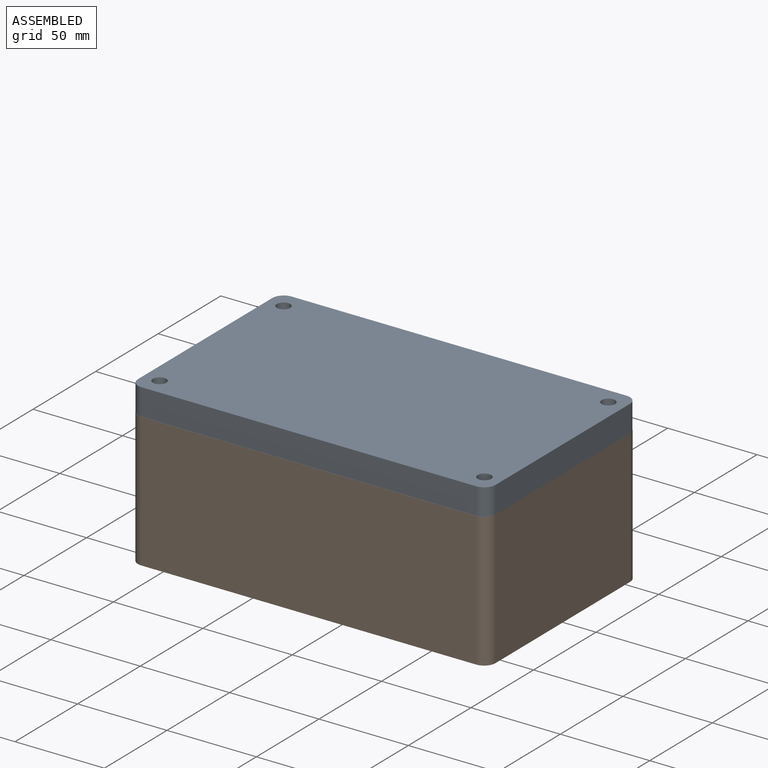
[diagram: assembled view]
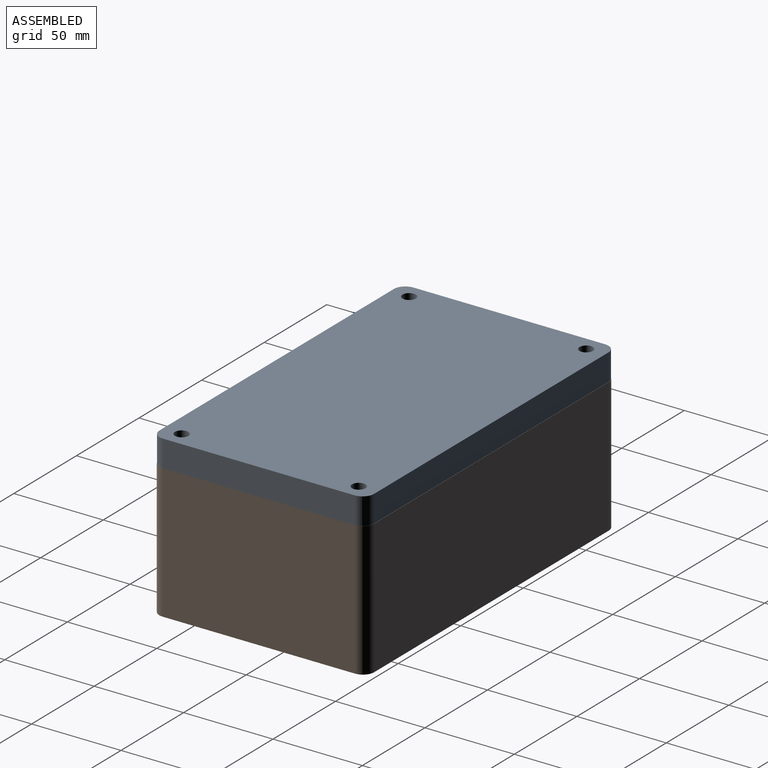
[diagram: assembled view, second angle]
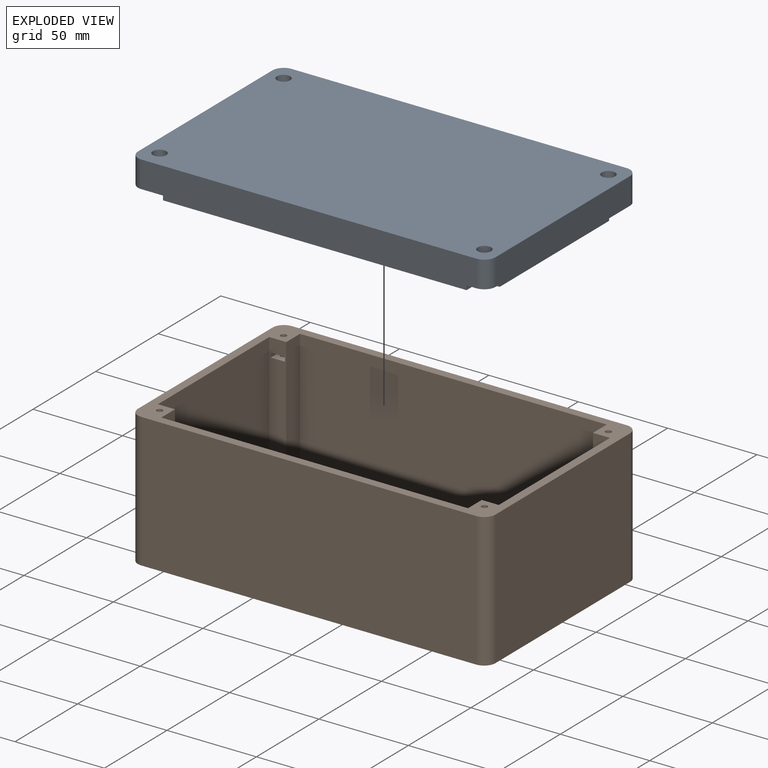
[diagram: exploded view]
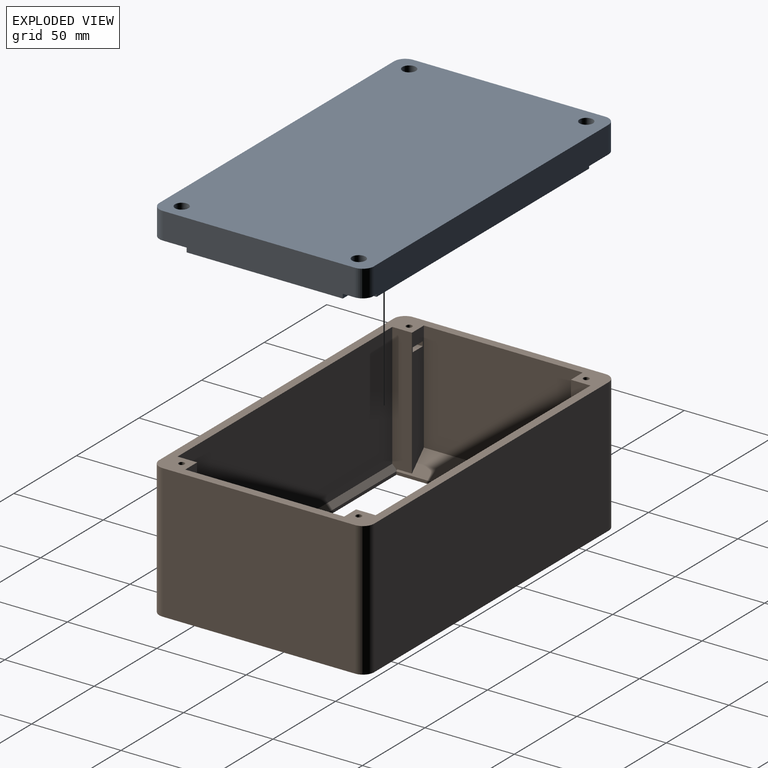
[diagram: exploded view, second angle]
ASSEMBLY  parts=2 mates=2
PART A: 35 faces, bbox 120x200x20.1 mm
  f0: plane 200.03x120mm, normal (0,0,-1), area 3307.9mm2, adj f2,f3,f4,f5,f6,f7,f8,f9
  f1: plane 200.03x120mm, normal (0,0,1), area 23791.6mm2, adj f2,f3,f4,f5,f19,f21,f23,f25
  f2: plane 187.33x14.99mm, normal (-1,0,0), area 2807.3mm2, adj f0,f1,f31,f34
  f3: plane 107.3x14.99mm, normal (0,-1,0), area 1608.1mm2, adj f0,f1,f31,f32
  f4: plane 187.33x14.99mm, normal (1,0,0), area 2807.3mm2, adj f0,f1,f32,f33
  f5: plane 107.3x14.99mm, normal (0,1,0), area 1608.1mm2, adj f0,f1,f33,f34
  f6: plane 169.8x5.08mm, normal (-1,0,0), area 862.6mm2, adj f0,f7,f17,f18
  f7: plane 11.62x5.08mm, normal (0,1,0), area 59mm2, adj f0,f6,f8,f18
  f8: plane 10.41x5.08mm, normal (-1,0,0), area 52.9mm2, adj f0,f7,f9,f18
  f9: plane 87.38x5.08mm, normal (0,1,0), area 443.9mm2, adj f0,f8,f10,f18
  f10: plane 10.41x5.08mm, normal (1,0,0), area 52.9mm2, adj f0,f9,f11,f18
  f11: plane 11.62x5.08mm, normal (0,1,0), area 59mm2, adj f0,f10,f12,f18
  f12: plane 169.8x5.08mm, normal (1,0,0), area 862.6mm2, adj f0,f11,f13,f18
  f13: plane 11.62x5.08mm, normal (0,-1,0), area 59mm2, adj f0,f12,f14,f18
  f14: plane 10.41x5.08mm, normal (1,0,0), area 52.9mm2, adj f0,f13,f15,f18
  f15: plane 87.38x5.08mm, normal (0,-1,0), area 443.9mm2, adj f0,f14,f16,f18
  f16: plane 10.41x5.08mm, normal (-1,0,0), area 52.9mm2, adj f0,f15,f17,f18
  f17: plane 11.62x5.08mm, normal (0,-1,0), area 59mm2, adj f0,f6,f16,f18
  f18: plane 190.63x110.61mm, normal (0,0,-1), area 20600.7mm2, adj f6,f7,f8,f9,f10,f11,f12,f13
  f19: cylinder r=3.76mm len=7.52mm, axis (0,0,1), area 120mm2, adj f1,f20
  f20: plane 7.52x7.52mm, normal (0,0,1), area 29.2mm2, adj f19,f30
  f21: cylinder r=3.76mm len=7.52mm, axis (0,0,1), area 120mm2, adj f1,f22
  f22: plane 7.52x7.52mm, normal (0,0,1), area 29.2mm2, adj f21,f29
  f23: cylinder r=3.76mm len=7.52mm, axis (0,0,1), area 120mm2, adj f1,f24
  f24: plane 7.52x7.52mm, normal (0,0,1), area 29.2mm2, adj f23,f28
  f25: cylinder r=3.76mm len=7.52mm, axis (0,0,1), area 120mm2, adj f1,f26
  f26: plane 7.52x7.52mm, normal (0,0,1), area 29.2mm2, adj f25,f27
  f27: cylinder r=2.2mm len=9.91mm, axis (0,0,1), area 136.8mm2, adj f0,f26
  f28: cylinder r=2.2mm len=9.91mm, axis (0,0,1), area 136.8mm2, adj f0,f24
  f29: cylinder r=2.2mm len=9.91mm, axis (0,0,1), area 136.8mm2, adj f0,f22
  f30: cylinder r=2.2mm len=9.91mm, axis (0,0,1), area 136.8mm2, adj f0,f20
  f31: cylinder r=6.35mm len=14.99mm, axis (0,0,1), area 149.5mm2, adj f0,f1,f2,f3
  f32: cylinder r=6.35mm len=14.99mm, axis (0,0,-1), area 149.5mm2, adj f0,f1,f3,f4
  f33: cylinder r=6.35mm len=14.99mm, axis (0,0,1), area 149.5mm2, adj f0,f1,f4,f5
  f34: cylinder r=6.35mm len=14.99mm, axis (0,0,-1), area 149.5mm2, adj f0,f1,f2,f5
PART B: 75 faces, bbox 200x120.3x75.1 mm
  f0: plane 72.01x10.98mm, normal (-1,0,0), area 771.8mm2, adj f3,f6,f12,f70,f72,f74
  f1: plane 71.22x9.53mm, normal (0,1,0), area 613mm2, adj f2,f6,f17,f32,f33,f34,f35,f72
  f2: plane 72.01x10.98mm, normal (-1,0,0), area 780.1mm2, adj f1,f6,f16,f71,f72,f73
  f3: plane 71.22x9.53mm, normal (0,-1,0), area 613mm2, adj f0,f6,f17,f37,f38,f39,f40,f72
  f4: plane 72.01x10.98mm, normal (1,0,0), area 780.1mm2, adj f6,f15,f16,f68,f69,f71
  f5: plane 71.22x9.53mm, normal (0,-1,0), area 613mm2, adj f6,f13,f14,f22,f23,f24,f25,f69
  f6: plane 200.03x120.25mm, normal (0,0,1), area 3271.1mm2, adj f0,f1,f2,f3,f4,f5,f7,f8
  f7: plane 107.55x75.1mm, normal (1,0,0), area 8077.2mm2, adj f6,f11,f18,f21
  f8: plane 187.33x75.1mm, normal (0,1,0), area 14068.1mm2, adj f6,f11,f18,f19
  f9: plane 107.55x75.1mm, normal (-1,0,0), area 8077.2mm2, adj f6,f11,f19,f20
  f10: plane 187.33x75.1mm, normal (0,-1,0), area 14068.1mm2, adj f6,f11,f20,f21
  f11: plane 200.03x120.25mm, normal (0,0,-1), area 2065.2mm2, adj f7,f8,f9,f10,f18,f19,f20,f21
  f12: plane 171.58x66.68mm, normal (0,-1,0), area 11441mm2, adj f0,f6,f13,f70
  f13: plane 72.01x10.98mm, normal (1,0,0), area 771.8mm2, adj f5,f6,f12,f67,f69,f70
  f14: plane 88.9x61.7mm, normal (1,0,0), area 5484.7mm2, adj f5,f6,f15,f69
  f15: plane 71.22x9.53mm, normal (0,1,0), area 613mm2, adj f4,f6,f14,f27,f28,f29,f30,f69
  f16: plane 171.58x69.18mm, normal (0,1,0), area 11869.9mm2, adj f2,f4,f6,f71
  f17: plane 88.9x61.7mm, normal (-1,0,0), area 5484.7mm2, adj f1,f3,f6,f72
  f18: cylinder r=6.35mm len=75.1mm, axis (0,0,1), area 749.1mm2, adj f6,f7,f8,f11
  f19: cylinder r=6.35mm len=75.1mm, axis (0,0,-1), area 749.1mm2, adj f6,f8,f9,f11
  f20: cylinder r=6.35mm len=75.1mm, axis (0,0,1), area 749.1mm2, adj f6,f9,f10,f11
  f21: cylinder r=6.35mm len=75.1mm, axis (0,0,-1), area 749.1mm2, adj f6,f7,f10,f11
  f22: plane 10.16x2.5mm, normal (-1,0,0), area 25.4mm2, adj f5,f23,f25,f26
  f23: plane 10.16x8mm, normal (0,0,-1), area 72.7mm2, adj f5,f22,f24,f26,f62
  f24: plane 10.16x2.5mm, normal (1,0,0), area 25.4mm2, adj f5,f23,f25,f26
  f25: plane 10.16x8mm, normal (0,0,1), area 72.7mm2, adj f5,f22,f24,f26,f60
  f26: plane 8x2.5mm, normal (0,-1,0), area 20mm2, adj f22,f23,f24,f25
  f27: plane 10.16x2.5mm, normal (-1,0,0), area 25.4mm2, adj f15,f28,f30,f31
  f28: plane 10.16x8mm, normal (0,0,1), area 72.7mm2, adj f15,f27,f29,f31,f58
  f29: plane 10.16x2.5mm, normal (1,0,0), area 25.4mm2, adj f15,f28,f30,f31
  f30: plane 10.16x8mm, normal (0,0,-1), area 72.7mm2, adj f15,f27,f29,f31,f57
  f31: plane 8x2.5mm, normal (0,1,0), area 20mm2, adj f27,f28,f29,f30
  f32: plane 10.16x2.5mm, normal (1,0,0), area 25.4mm2, adj f1,f33,f35,f36
  f33: plane 10.16x8mm, normal (0,0,-1), area 72.7mm2, adj f1,f32,f34,f36,f56
  f34: plane 10.16x2.5mm, normal (-1,0,0), area 25.4mm2, adj f1,f33,f35,f36
  f35: plane 10.16x8mm, normal (0,0,1), area 72.7mm2, adj f1,f32,f34,f36,f54
  f36: plane 8x2.5mm, normal (0,1,0), area 20mm2, adj f32,f33,f34,f35
  f37: plane 10.16x2.5mm, normal (1,0,0), area 25.4mm2, adj f3,f38,f40,f41
  f38: plane 10.16x8mm, normal (0,0,1), area 72.7mm2, adj f3,f37,f39,f41,f52
  f39: plane 10.16x2.5mm, normal (-1,0,0), area 25.4mm2, adj f3,f38,f40,f41
  f40: plane 10.16x8mm, normal (0,0,-1), area 72.7mm2, adj f3,f37,f39,f41,f51
  f41: plane 8x2.5mm, normal (0,-1,0), area 20mm2, adj f37,f38,f39,f40
  f42: plane 180.98x1.4mm, normal (0,-1,0), area 253.4mm2, adj f11,f43,f49,f50
  f43: cylinder r=7.01mm len=7.01mm, axis (0,0,-1), area 15.4mm2, adj f11,f42,f44,f50
  f44: plane 98.79x1.4mm, normal (-1,0,0), area 138.3mm2, adj f11,f43,f45,f50
  f45: cylinder r=7mm len=7mm, axis (0,0,-1), area 15.4mm2, adj f11,f44,f46,f50
  f46: plane 180.99x1.4mm, normal (0,1,0), area 253.4mm2, adj f11,f45,f47,f50
  f47: cylinder r=7.01mm len=7.01mm, axis (0,0,-1), area 15.4mm2, adj f11,f46,f48,f50
  f48: plane 98.78x1.4mm, normal (1,0,0), area 138.3mm2, adj f11,f47,f49,f50
  f49: cylinder r=7.01mm len=7.01mm, axis (0,0,-1), area 15.4mm2, adj f11,f42,f48,f50
  f50: plane 195x112.8mm, normal (0,0,-1), area 4494.8mm2, adj f42,f43,f44,f45,f46,f47,f48,f49
  f51: cylinder r=1.65mm len=7.62mm, axis (0,0,1), area 79mm2, adj f6,f40
  f52: cylinder r=1.65mm len=4.68mm, axis (0,0,1), area 48.5mm2, adj f38,f53
  f53: cone r=0mm half-angle=59deg, axis (0,0,1), area 10mm2, adj f52
  f54: cylinder r=1.65mm len=4.68mm, axis (0,0,1), area 48.5mm2, adj f35,f55
  f55: cone r=0mm half-angle=59deg, axis (0,0,1), area 10mm2, adj f54
  f56: cylinder r=1.65mm len=7.62mm, axis (0,0,1), area 79mm2, adj f6,f33
  f57: cylinder r=1.65mm len=7.62mm, axis (0,0,1), area 79mm2, adj f6,f30
  f58: cylinder r=1.65mm len=4.68mm, axis (0,0,1), area 48.5mm2, adj f28,f59
  f59: cone r=0mm half-angle=59deg, axis (0,0,1), area 10mm2, adj f58
  f60: cylinder r=1.65mm len=4.68mm, axis (0,0,1), area 48.5mm2, adj f25,f61
  f61: cone r=0mm half-angle=59deg, axis (0,0,1), area 10mm2, adj f60
  f62: cylinder r=1.65mm len=7.62mm, axis (0,0,1), area 79mm2, adj f6,f23
  f63: plane 170x1.69mm, normal (0,1,0), area 287.5mm2, adj f50,f64,f66,f71
  f64: plane 102.7x1.69mm, normal (1,0,0), area 173.7mm2, adj f50,f63,f65,f69
  f65: plane 170x1.69mm, normal (0,-1,0), area 287.5mm2, adj f50,f64,f66,f70
  f66: plane 102.7x1.69mm, normal (-1,0,0), area 173.7mm2, adj f50,f63,f65,f72
  f67: plane 0.79x0.79mm, normal (0,1,0), area 0.3mm2, adj f13,f69,f70
  f68: plane 0.79x0.79mm, normal (0,-1,0), area 0.3mm2, adj f4,f69,f71
  f69: plane 102.7x10.31mm, normal (0.71,0,0.71), area 1312mm2, adj f4,f5,f13,f14,f15,f64,f67,f68
  f70: plane 171.58x5.33mm, normal (0,-0.71,0.71), area 1292.7mm2, adj f0,f12,f13,f65,f67,f74
  f71: plane 171.58x2.83mm, normal (0,0.71,0.71), area 686.1mm2, adj f2,f4,f16,f63,f68,f73
  f72: plane 102.7x10.31mm, normal (-0.71,0,0.71), area 1312mm2, adj f0,f1,f2,f3,f17,f66,f73,f74
  f73: plane 0.79x0.79mm, normal (0,-1,0), area 0.3mm2, adj f2,f71,f72
  f74: plane 0.79x0.79mm, normal (0,1,0), area 0.3mm2, adj f0,f70,f72
PLACE A rot(axis=(0,0,1),90deg) t=(-92.33,-347.54,338.98)mm
PLACE B t=(-92.33,-227.41,263.88)mm fixed
MATE parallel B.f19 <-> A.f33  axis (0,0,1) through (-286.01,-233.76,338.98)mm
MATE planar A.f3 <-> B.f7  axis (1,0,0) through (-92.33,-287.54,346.48)mm
